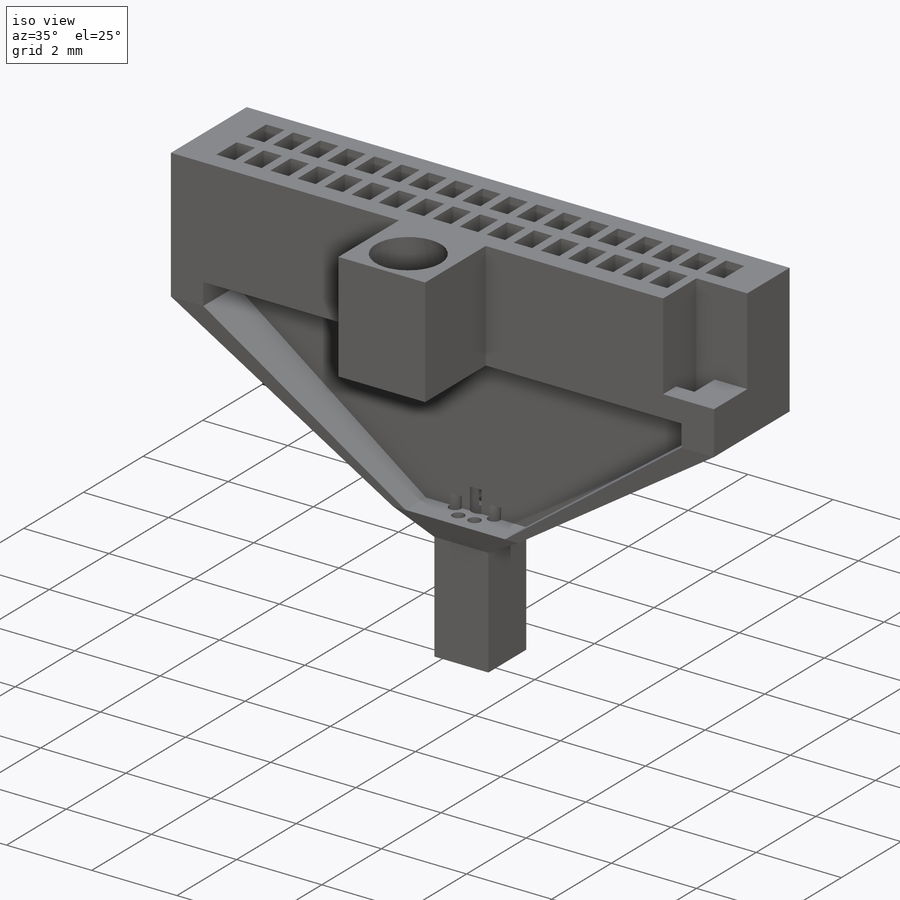
[diagram: iso view]
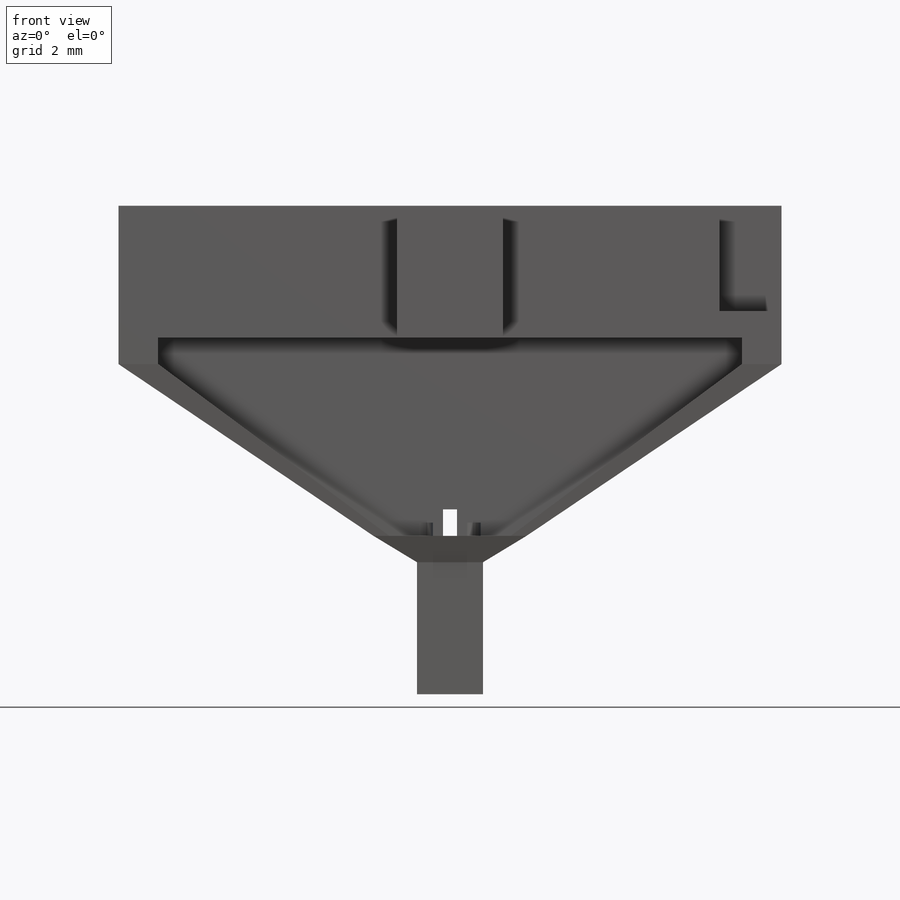
[diagram: front view]
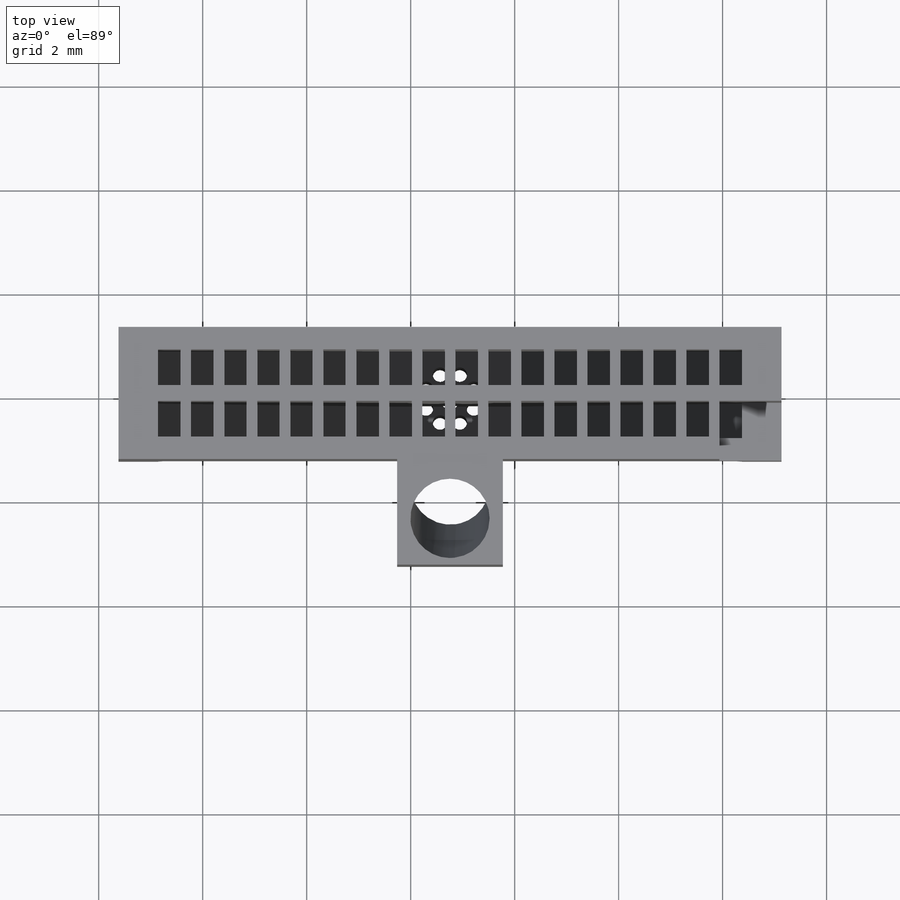
[diagram: top view]
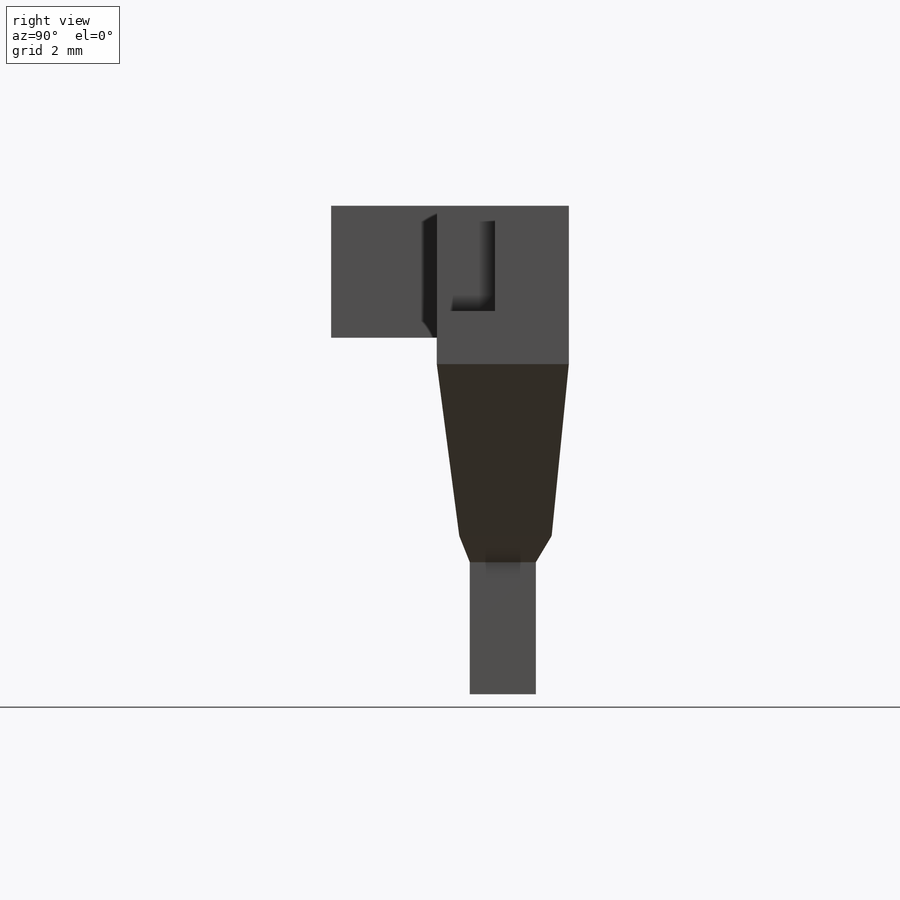
[diagram: right view]
SOLIDWORKS PART (.sldprt)
format: sldprt  version: not decoded by parser v0  size: 731,648 bytes
history: native  units: mm
features: sketch x18, extrude x9, cut_extrude x4, plane x2, material x1 (+12 scaffold rows collapsed)
feature tree (46):
  scaffold x12  (default folders/planes/origin — collapsed)
  material  "Material <not specified>"
  sketch  "main_block"  dims[D1=12.7508mm D2=2.54mm]
  sketch  "top_holes"  dims[D1=0.4318mm D2=0.6858mm D3=0.762mm D4=0.4318mm D7=0.6858mm D5=18.0 D6=2.0]
  extrude  "well_block"  Depth=2.54mm
  cut_extrude  "omnetics_wells"  Depth=2.54mm
  plane  "Plane1"  Offset=6.35mm
  sketch  "Sketch4"  dims[D1=~2.336683mm D2=1.778mm]
  sketch  "Sketch5"  dims[D1=0.3048mm]
  sketch  "Sketch6"
  sketch  "Sketch7"  dims[D1=0.3048mm]
  sketch  "Sketch8"  dims[D1=0.762mm D2=0.0mm D3=0.0mm]
  extrude  "supportbeam1"  Depth=0.508mm
  sketch  "Sketch9"  dims[D1=0.3048mm]
  sketch  "Sketch10"  dims[D1=0.762mm D2=0.0mm D3=0.0mm]
  extrude  "supportbeam2"  Depth=0.508mm
  extrude  "arm2"  [1 undecoded]
  extrude  "wall_divider"  Depth=0.508mm
  extrude  "wall_divider2"  [1 undecoded]
  sketch  "Sketch12"  dims[c1.D1=2.54mm c1.D2=2.9464mm c2.D1=0.0mm c2.D3=0.0mm]
  plane  "Plane2"  Offset=0.508mm
  sketch  "Sketch13"  dims[c1.D1=1.27mm c1.D2=1.27mm c1.D3=~0.558799mm c1.D4=0.6604mm c2.D3=0.4826mm c2.D4=0.5334mm c2.D5=~0.533406mm c2.D6=~0.482599mm]
  extrude  "exit_base"  [1 undecoded]
  extrude  "tetrode_funnel"  [1 undecoded]
  sketch  "Sketch13<3>"  dims[D1=2.54mm]
  sketch  "Sketch17"
  cut_extrude  "ground_wire_hole"  Depth=2.032mm
  sketch  "Sketch18"  dims[c1.D1=0.1524mm c1.D2=~0.486008mm c1.D3=~0.485932mm c2.D2=0.4445mm c2.D3=0.1778mm c2.D4=0.0mm c2.D5=0.381mm c2.D6=0.5715mm c2.D7=~0.299385mm c3.D6=0.4445mm c3.D1=8.0]
  cut_extrude  "tetrodes"  Depth=3.302mm
  sketch  "Sketch19"  dims[c1.D1=1.397mm c1.D3=0.1397mm c2.D1=0.635mm c2.D2=0.635mm]
  cut_extrude  "fiber_optic_hole"  Depth=3.556mm
  sketch  "Sketch20"  dims[D1=2.54mm D2=2.032mm D3=5.3594mm D4=5.3594mm]
  extrude  "fiber_optic_holder"  Depth=2.032mm
  sketch  "Sketch24"  dims[c1.D1=1.27mm c1.D2=0.635mm c2.D1=0.889mm]
  sketch  "Sketch25"  dims[c1.D1=1.524mm c1.D2=1.524mm c2.D1=0.889mm c2.D2=~0.004008mm]
decode coverage: 25 of 31 modeling features carry decoded parameters
note: ~ marks probable driven/reference dimensions
note: 4 parameter values undecoded
summary: no parameter record found for 4 features
note: suppression state not decoded; provenance and decode notes live in map.json
